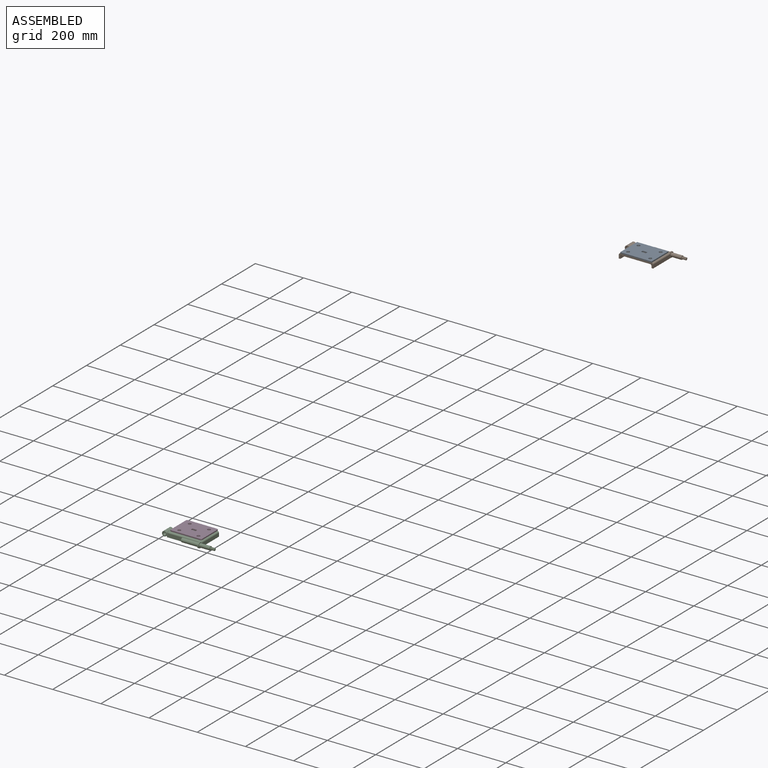
[diagram: assembled view]
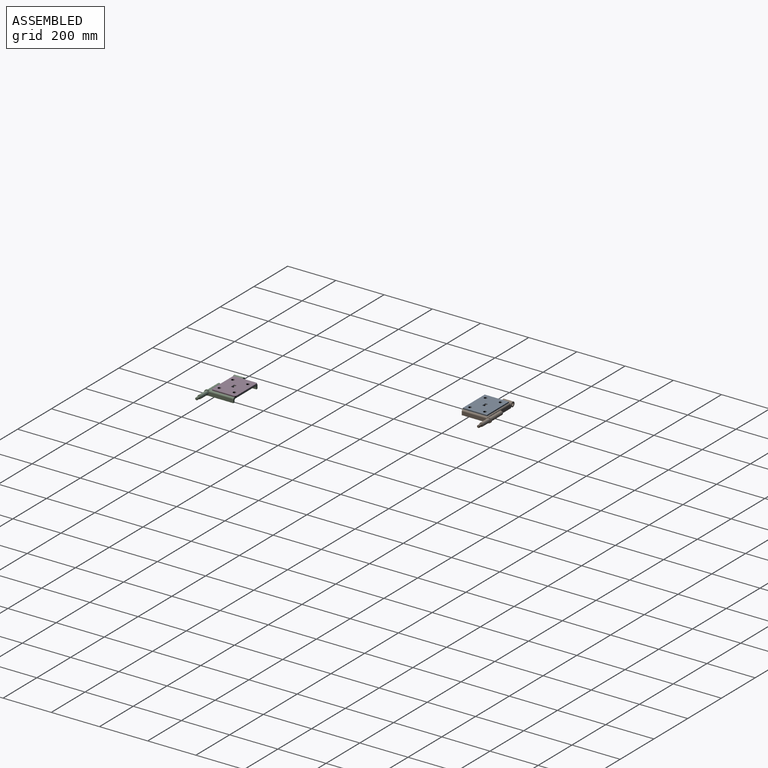
[diagram: assembled view, second angle]
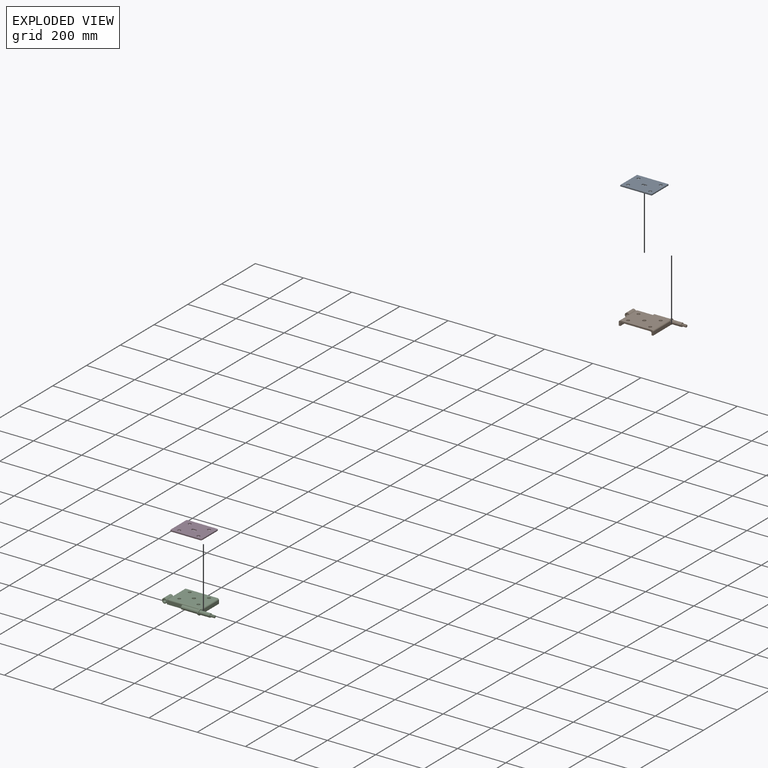
[diagram: exploded view]
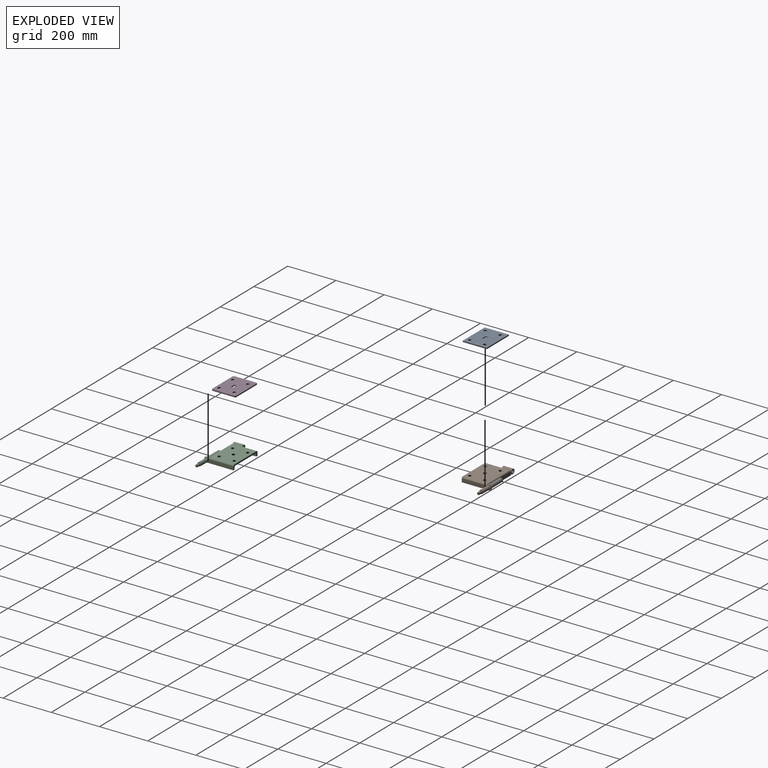
[diagram: exploded view, second angle]
ASSEMBLY  parts=4 mates=2
PART A: 14 faces, bbox 100x130.5x5 mm
  f0: plane 100x5mm, normal (0,-1,0), area 500mm2, adj f1,f9,f12,f13
  f1: plane 130.5x5mm, normal (1,0,0), area 652.5mm2, adj f0,f2,f12,f13
  f2: plane 100x5mm, normal (0,1,0), area 500mm2, adj f1,f9,f12,f13
  f3: plane 20x5mm, normal (-1,0,0), area 100mm2, adj f4,f10,f12,f13
  f4: plane 10x5mm, normal (0,1,0), area 50mm2, adj f3,f5,f12,f13
  f5: plane 20x5mm, normal (1,0,0), area 100mm2, adj f4,f10,f12,f13
  f6: cylinder r=6.5mm len=13mm, axis (0,0,-1), area 204.2mm2, adj f12,f13
  f7: cylinder r=6.5mm len=13mm, axis (0,0,-1), area 204.2mm2, adj f12,f13
  f8: cylinder r=6.5mm len=13mm, axis (0,0,-1), area 204.2mm2, adj f12,f13
  f9: plane 130.5x5mm, normal (-1,0,0), area 652.5mm2, adj f0,f2,f12,f13
  f10: plane 10x5mm, normal (0,-1,0), area 50mm2, adj f3,f5,f12,f13
  f11: cylinder r=6.5mm len=13mm, axis (0,0,-1), area 204.2mm2, adj f12,f13
  f12: plane 130.5x100mm, normal (0,0,1), area 12319.1mm2, adj f0,f1,f2,f3,f4,f5,f6,f7
  f13: plane 130.5x100mm, normal (0,0,-1), area 12319.1mm2, adj f0,f1,f2,f3,f4,f5,f6,f7
PART B: 46 faces, bbox 123x224.6x24 mm
  f0: plane 130.5x100mm, normal (0,0,1), area 12365.1mm2, adj f7,f24,f25,f27,f28,f42,f43,f44
  f1: cone r=4.25mm half-angle=45deg, axis (0,1,0), area 37.8mm2, adj f11,f12,f37,f39
  f2: plane 163.14x20.34mm, normal (1,0,0), area 1537.1mm2, adj f3,f4,f5,f6,f8,f13,f14,f16
  f3: plane 121.5x21mm, normal (0,-1,0), area 1569.8mm2, adj f2,f6,f7,f9,f25,f31,f33,f35
  f4: plane 105x14mm, normal (0,1,0), area 1375mm2, adj f2,f6,f7,f13,f14,f15,f24,f30
  f5: cylinder r=8mm len=74.36mm, axis (0,-1,0), area 2671.3mm2, adj f2,f8,f25,f28,f33,f34
  f6: plane 142.5x105mm, normal (0,0,-1), area 2206.7mm2, adj f2,f3,f4,f7,f18,f22,f23
  f7: plane 142.5x20mm, normal (-1,0,0), area 1101.7mm2, adj f0,f3,f4,f6,f18,f19,f20,f21
  f8: plane 16x14.01mm, normal (0,1,0), area 186.6mm2, adj f2,f5,f28
  f9: cylinder r=7.75mm len=43.5mm, axis (0,1,0), area 2118.2mm2, adj f3,f10,f26
  f10: plane 15.5x15.5mm, normal (0,-1,0), area 102.1mm2, adj f9,f11,f41
  f11: cylinder r=5.25mm len=17mm, axis (0,1,0), area 24.9mm2, adj f1,f10,f37,f38,f39,f40
  f12: plane 8.5x8.5mm, normal (0,-1,0), area 56.7mm2, adj f1
  f13: plane 40x5.35mm, normal (0,0,1), area 19.4mm2, adj f2,f4,f15,f16,f30
  f14: plane 40x0.35mm, normal (0,0,-1), area 14mm2, adj f2,f4,f15,f16
  f15: plane 20.5x20.2mm, normal (-1,0,0), area 208mm2, adj f4,f13,f14,f16,f17
  f16: cylinder r=10.1mm len=40mm, axis (1,0,0), area 2458.3mm2, adj f2,f13,f14,f15
  f17: cylinder r=6mm len=40mm, axis (1,0,0), area 1508mm2, adj f2,f15
  f18: plane 98.5x7.5mm, normal (0,1,0), area 738.8mm2, adj f6,f7,f19,f23
  f19: cylinder r=6mm len=98.5mm, axis (-1,0,0), area 928.3mm2, adj f7,f18,f20,f23
  f20: plane 117.5x98.5mm, normal (0,0,-1), area 10888.9mm2, adj f7,f19,f21,f23,f27,f42,f43,f44
  f21: cylinder r=6mm len=98.5mm, axis (-1,0,0), area 928.3mm2, adj f7,f20,f22,f23
  f22: plane 98.5x7.5mm, normal (0,-1,0), area 738.8mm2, adj f6,f7,f21,f23
  f23: plane 129.5x13.5mm, normal (-1,0,0), area 1732.8mm2, adj f6,f18,f19,f20,f21,f22
  f24: cylinder r=6mm len=100mm, axis (-1,0,0), area 942.5mm2, adj f0,f4,f7,f29
  f25: cylinder r=6mm len=117.93mm, axis (-1,0,0), area 1015.3mm2, adj f0,f3,f5,f7,f26,f28,f31
  f26: plane 13.28x3.75mm, normal (0,1,0), area 35.2mm2, adj f9,f25
  f27: cylinder r=7mm len=14mm, axis (0,0,1), area 285.9mm2, adj f0,f20
  f28: cylinder r=5mm len=136.36mm, axis (0,-1,0), area 1032.2mm2, adj f0,f2,f5,f8,f25,f29
  f29: torus R=1mm, axis (1,0,0), area 51.6mm2, adj f2,f24,f28,f30
  f30: cylinder r=5mm len=5mm, axis (0,0,1), area 23.6mm2, adj f2,f4,f13,f29
  f31: cylinder r=8mm len=12.93mm, axis (0,-1,0), area 12.7mm2, adj f3,f25,f33
  f32: cylinder r=11mm len=22mm, axis (0,-1,0), area 212.6mm2, adj f2,f33,f35,f36
  f33: plane 5.64x4.07mm, normal (-1,0,0), area 21.5mm2, adj f3,f5,f31,f32,f34,f35,f36
  f34: plane 21x16.5mm, normal (0,1,0), area 105.4mm2, adj f2,f5,f33,f36
  f35: torus R=10.5mm, axis (0,-1,0), area 36.8mm2, adj f2,f3,f32,f33
  f36: torus R=10.5mm, axis (0,-1,0), area 36.8mm2, adj f2,f32,f33,f34
  f37: plane 1.07x1.01mm, normal (0,0,1), area 0.5mm2, adj f1,f11,f39,f40
  f38: plane 1.24x0.87mm, normal (0.59,0,0.81), area 0.7mm2, adj f11,f39,f40,f41
  f39: bspline ~17.7x12.12mm, area 494.9mm2, adj f1,f11,f37,f38,f40
  f40: bspline ~17.7x12.12mm, area 501mm2, adj f11,f37,f38,f39,f41
  f41: cylinder r=5.25mm len=9.44mm, axis (0,1,0), area 5.1mm2, adj f10,f38,f40
  f42: cylinder r=6.5mm len=13mm, axis (0,0,1), area 265.5mm2, adj f0,f20
  f43: cylinder r=6.5mm len=13mm, axis (0,0,1), area 265.5mm2, adj f0,f20
  f44: cylinder r=6.5mm len=13mm, axis (0,0,1), area 265.5mm2, adj f0,f20
  f45: cylinder r=6.5mm len=13mm, axis (0,0,1), area 265.5mm2, adj f0,f20
PART C: 46 faces, bbox 123x224.6x24 mm
  f0: cone r=4.25mm half-angle=45deg, axis (0,1,0), area 37.8mm2, adj f11,f12,f37,f39
  f1: plane 163.14x20.34mm, normal (-1,0,0), area 1537.1mm2, adj f3,f4,f5,f6,f8,f13,f14,f16
  f2: plane 130.5x100mm, normal (0,0,1), area 12365.1mm2, adj f7,f24,f25,f27,f28,f42,f43,f44
  f3: plane 121.5x21mm, normal (0,-1,0), area 1569.8mm2, adj f1,f6,f7,f9,f25,f31,f33,f35
  f4: plane 105x14mm, normal (0,1,0), area 1375mm2, adj f1,f6,f7,f13,f14,f15,f24,f30
  f5: cylinder r=8mm len=74.36mm, axis (0,-1,0), area 2671.3mm2, adj f1,f8,f25,f28,f33,f34
  f6: plane 142.5x105mm, normal (0,0,-1), area 2206.7mm2, adj f1,f3,f4,f7,f18,f22,f23
  f7: plane 142.5x20mm, normal (1,0,0), area 1101.7mm2, adj f2,f3,f4,f6,f18,f19,f20,f21
  f8: plane 16x14.01mm, normal (0,1,0), area 186.6mm2, adj f1,f5,f28
  f9: cylinder r=7.75mm len=43.5mm, axis (0,1,0), area 2118.2mm2, adj f3,f10,f26
  f10: plane 15.5x15.5mm, normal (0,-1,0), area 102.1mm2, adj f9,f11,f41
  f11: cylinder r=5.25mm len=17mm, axis (0,1,0), area 8mm2, adj f0,f10,f37,f38,f39,f40
  f12: plane 8.5x8.5mm, normal (0,-1,0), area 56.7mm2, adj f0
  f13: plane 40x5.35mm, normal (0,0,1), area 19.4mm2, adj f1,f4,f15,f16,f30
  f14: plane 40x0.35mm, normal (0,0,-1), area 14mm2, adj f1,f4,f15,f16
  f15: plane 20.5x20.2mm, normal (1,0,0), area 208mm2, adj f4,f13,f14,f16,f17
  f16: cylinder r=10.1mm len=40mm, axis (-1,0,0), area 2458.3mm2, adj f1,f13,f14,f15
  f17: cylinder r=6mm len=40mm, axis (-1,0,0), area 1508mm2, adj f1,f15
  f18: plane 98.5x7.5mm, normal (0,1,0), area 738.7mm2, adj f6,f7,f19,f23
  f19: cylinder r=6mm len=98.5mm, axis (1,0,0), area 928.3mm2, adj f7,f18,f20,f23
  f20: plane 117.5x98.5mm, normal (0,0,-1), area 10888.9mm2, adj f7,f19,f21,f23,f27,f42,f43,f44
  f21: cylinder r=6mm len=98.5mm, axis (1,0,0), area 928.3mm2, adj f7,f20,f22,f23
  f22: plane 98.5x7.5mm, normal (0,-1,0), area 738.7mm2, adj f6,f7,f21,f23
  f23: plane 129.5x13.5mm, normal (1,0,0), area 1732.8mm2, adj f6,f18,f19,f20,f21,f22
  f24: cylinder r=6mm len=100mm, axis (1,0,0), area 942.5mm2, adj f2,f4,f7,f29
  f25: cylinder r=6mm len=117.93mm, axis (1,0,0), area 1015.3mm2, adj f2,f3,f5,f7,f26,f28,f31
  f26: plane 13.28x3.75mm, normal (0,1,0), area 35.2mm2, adj f9,f25
  f27: cylinder r=7mm len=14mm, axis (0,0,1), area 285.9mm2, adj f2,f20
  f28: cylinder r=5mm len=136.36mm, axis (0,-1,0), area 1032.2mm2, adj f1,f2,f5,f8,f25,f29
  f29: torus R=1mm, axis (-1,0,0), area 51.6mm2, adj f1,f24,f28,f30
  f30: cylinder r=5mm len=5mm, axis (0,0,1), area 23.6mm2, adj f1,f4,f13,f29
  f31: cylinder r=8mm len=12.93mm, axis (0,-1,0), area 12.7mm2, adj f3,f25,f33
  f32: cylinder r=11mm len=22mm, axis (0,-1,0), area 212.6mm2, adj f1,f33,f35,f36
  f33: plane 5.64x4.07mm, normal (1,0,0), area 21.5mm2, adj f3,f5,f31,f32,f34,f35,f36
  f34: plane 21x16.5mm, normal (0,1,0), area 105.4mm2, adj f1,f5,f33,f36
  f35: torus R=10.5mm, axis (0,-1,0), area 36.8mm2, adj f1,f3,f32,f33
  f36: torus R=10.5mm, axis (0,-1,0), area 36.8mm2, adj f1,f32,f33,f34
  f37: plane 1.07x1.01mm, normal (0,0,1), area 0.5mm2, adj f0,f11,f39,f40
  f38: plane 1.24x0.87mm, normal (-0.59,0,0.81), area 0.7mm2, adj f11,f39,f40,f41
  f39: bspline ~17.7x12.12mm, area 494.9mm2, adj f0,f11,f37,f38,f40
  f40: bspline ~17.7x12.12mm, area 501mm2, adj f11,f37,f38,f39,f41
  f41: cylinder r=5.25mm len=9.44mm, axis (0,1,0), area 5.1mm2, adj f10,f38,f40
  f42: cylinder r=6.5mm len=13mm, axis (0,0,1), area 265.5mm2, adj f2,f20
  f43: cylinder r=6.5mm len=13mm, axis (0,0,1), area 265.5mm2, adj f2,f20
  f44: cylinder r=6.5mm len=13mm, axis (0,0,1), area 265.5mm2, adj f2,f20
  f45: cylinder r=6.5mm len=13mm, axis (0,0,1), area 265.5mm2, adj f2,f20
PART D: 18 faces, bbox 100x130.5x5 mm
  f0: plane 120.5x5mm, normal (-1,0,0), area 602.5mm2, adj f12,f13,f14,f17
  f1: plane 90x5mm, normal (0,-1,0), area 450mm2, adj f12,f13,f14,f15
  f2: plane 120.5x5mm, normal (1,0,0), area 602.5mm2, adj f12,f13,f15,f16
  f3: plane 20x5mm, normal (-1,0,0), area 100mm2, adj f4,f10,f12,f13
  f4: plane 10x5mm, normal (0,1,0), area 50mm2, adj f3,f5,f12,f13
  f5: plane 20x5mm, normal (1,0,0), area 100mm2, adj f4,f10,f12,f13
  f6: cylinder r=6.5mm len=13mm, axis (0,0,-1), area 204.2mm2, adj f12,f13
  f7: cylinder r=6.5mm len=13mm, axis (0,0,-1), area 204.2mm2, adj f12,f13
  f8: cylinder r=6.5mm len=13mm, axis (0,0,-1), area 204.2mm2, adj f12,f13
  f9: cylinder r=6.5mm len=13mm, axis (0,0,-1), area 204.2mm2, adj f12,f13
  f10: plane 10x5mm, normal (0,-1,0), area 50mm2, adj f3,f5,f12,f13
  f11: plane 90x5mm, normal (0,1,0), area 450mm2, adj f12,f13,f16,f17
  f12: plane 130.5x100mm, normal (0,0,1), area 12297.6mm2, adj f0,f1,f2,f3,f4,f5,f6,f7
  f13: plane 130.5x100mm, normal (0,0,-1), area 12297.6mm2, adj f0,f1,f2,f3,f4,f5,f6,f7
  f14: cylinder r=5mm len=5mm, axis (0,0,1), area 39.3mm2, adj f0,f1,f12,f13
  f15: cylinder r=5mm len=5mm, axis (0,0,-1), area 39.3mm2, adj f1,f2,f12,f13
  f16: cylinder r=5mm len=5mm, axis (0,0,1), area 39.3mm2, adj f2,f11,f12,f13
  f17: cylinder r=5mm len=5mm, axis (0,0,-1), area 39.3mm2, adj f0,f11,f12,f13
PLACE A rot(axis=(0,0,1),90deg) t=(-470.8,765.5,-90.51)mm
PLACE B rot(axis=(0,0,1),90deg) t=(-470.8,765.5,-90.51)mm
PLACE C rot(axis=(0,0,1),90deg) t=(-1234.37,-671.31,-733.95)mm
PLACE D rot(axis=(-0.71,0.71,0),180deg) t=(-1234.37,-961.81,-708.95)mm
MATE fastened C.f43 <-> D.f8  axis (0,0,1) through (-1121.37,-847.81,-723.95)mm
MATE fastened B.f45 <-> A.f11  axis (0,0,1) through (-444.3,792.5,-80.51)mm
